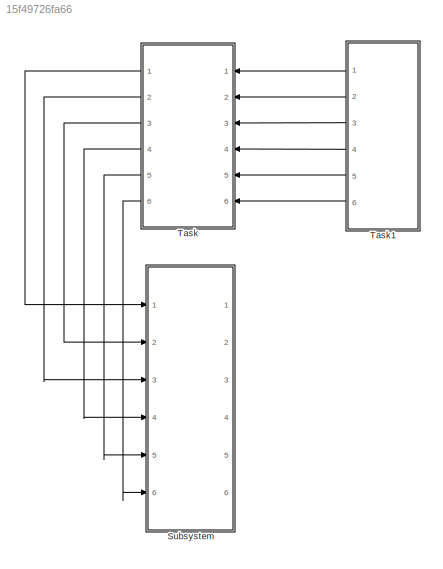
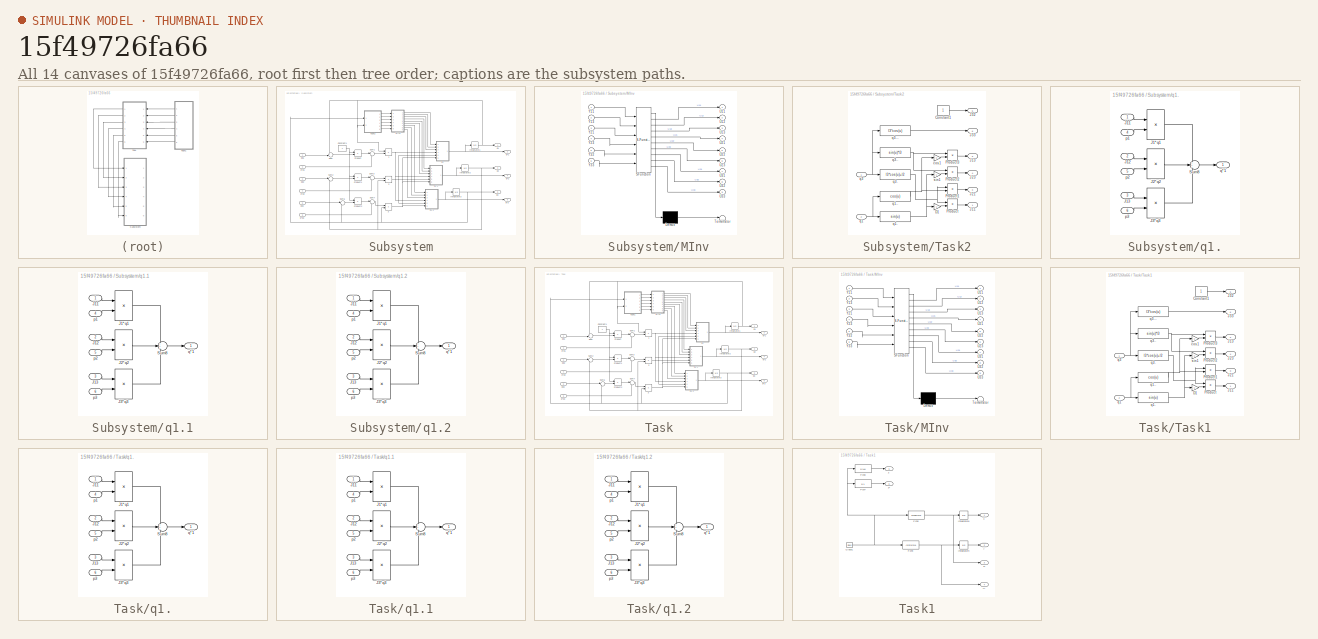
[diagram: thumbnail index - all 14 canvases of the model, root first then tree order]
MODEL slx_15f49726fa66
KIND model
CONFIG AbsTol = auto
CONFIG EnableMultiTasking = off
CONFIG FixedStep = auto
CONFIG MaxStep = auto
CONFIG MinStep = auto
CONFIG RelTol = 1e-3
CONFIG SampleTimeConstraint = Unconstrained
CONFIG Solver = VariableStepAuto
CONFIG SolverName = VariableStepAuto
CONFIG StartTime = 0.0
CONFIG StopTime = 10.0
BLOCK [SubSystem] Subsystem
  Ports = [6, 6]
  RequestExecContextInheritance = off
BLOCK [Product] Subsystem/1
  Ports = [2, 1]
BLOCK [Product] Subsystem/2
  Ports = [2, 1]
BLOCK [Product] Subsystem/3
  Ports = [2, 1]
BLOCK [Constant] Subsystem/Constant1
  Value = 7
BLOCK [Integrator] Subsystem/Integrator1
  Ports = [1, 1]
BLOCK [Integrator] Subsystem/Integrator2
  Ports = [1, 1]
BLOCK [Integrator] Subsystem/Integrator3
  InitialCondition = 0.1
  Ports = [1, 1]
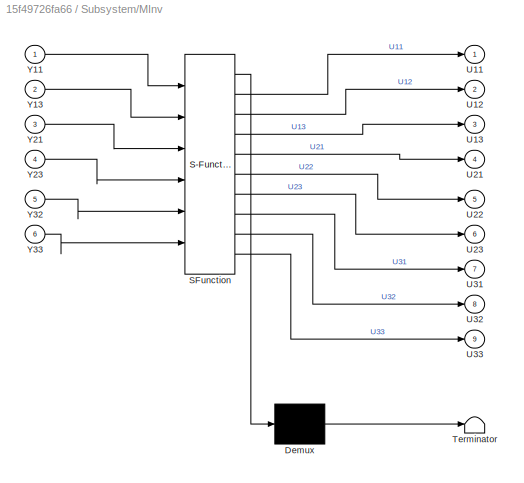
BLOCK [SubSystem] Subsystem/MInv
  ErrorFcn = Stateflow.Translate.translate
  PermitHierarchicalResolution = ExplicitOnly
  Ports = [6, 9]
  RequestExecContextInheritance = off
  SFBlockType = MATLAB Function
  TreatAsAtomicUnit = on
BLOCK [Demux] Subsystem/MInv/ Demux 
  Outputs = 1
  Ports = [1, 1]
BLOCK [S-Function] Subsystem/MInv/ SFunction 
  EnableBusSupport = on
  FunctionName = sf_sfun
  PortCounts = [6 10]
  Ports = [6, 10]
  SFcnIsStateOwnerBlock = off
  SFunctionDeploymentMode = off
  Tag = Stateflow S-Function 1
BLOCK [Terminator] Subsystem/MInv/ Terminator 
BLOCK [Outport] Subsystem/MInv/U11
BLOCK [Outport] Subsystem/MInv/U12
  Port = 2
BLOCK [Outport] Subsystem/MInv/U13
  Port = 3
BLOCK [Outport] Subsystem/MInv/U21
  Port = 4
BLOCK [Outport] Subsystem/MInv/U22
  Port = 5
BLOCK [Outport] Subsystem/MInv/U23
  Port = 6
BLOCK [Outport] Subsystem/MInv/U31
  Port = 7
BLOCK [Outport] Subsystem/MInv/U32
  Port = 8
BLOCK [Outport] Subsystem/MInv/U33
  Port = 9
BLOCK [Inport] Subsystem/MInv/Y11
BLOCK [Inport] Subsystem/MInv/Y13
  Port = 2
BLOCK [Inport] Subsystem/MInv/Y21
  Port = 3
BLOCK [Inport] Subsystem/MInv/Y23
  Port = 4
BLOCK [Inport] Subsystem/MInv/Y32
  Port = 5
BLOCK [Inport] Subsystem/MInv/Y33
  Port = 6
BLOCK [Product] Subsystem/Product
  Ports = [2, 1]
BLOCK [Product] Subsystem/Product1
  Ports = [2, 1]
BLOCK [Product] Subsystem/Product2
  Ports = [2, 1]
BLOCK [Sum] Subsystem/Sum
  Inputs = +-|
  Ports = [2, 1]
BLOCK [Sum] Subsystem/Sum1
  Inputs = |-+
  Ports = [2, 1]
BLOCK [Sum] Subsystem/Sum2
  Inputs = |-+
  Ports = [2, 1]
BLOCK [Sum] Subsystem/Sum3
  Inputs = |-+
  Ports = [2, 1]
BLOCK [Sum] Subsystem/Sum6
  Inputs = |-+
  Ports = [2, 1]
BLOCK [Sum] Subsystem/Sum7
  Inputs = |-+
  Ports = [2, 1]
BLOCK [SubSystem] Subsystem/Task2
  Ports = [2, 6]
  RequestExecContextInheritance = off
BLOCK [Constant] Subsystem/Task2/Constant1
BLOCK [Gain] Subsystem/Task2/D1
  Gain = -1
BLOCK [Outport] Subsystem/Task2/J11
BLOCK [Outport] Subsystem/Task2/J13
  Port = 2
BLOCK [Outport] Subsystem/Task2/J21
  Port = 3
BLOCK [Outport] Subsystem/Task2/J23
  Port = 4
BLOCK [Outport] Subsystem/Task2/J32
  Port = 5
BLOCK [Outport] Subsystem/Task2/J33
  Port = 6
BLOCK [Product] Subsystem/Task2/Product
  Ports = [2, 1]
BLOCK [Product] Subsystem/Task2/Product1
  Ports = [2, 1]
BLOCK [Product] Subsystem/Task2/Product2
  Ports = [2, 1]
BLOCK [Product] Subsystem/Task2/Product3
  Ports = [2, 1]
BLOCK [Gain] Subsystem/Task2/cos1
  Gain = -1
BLOCK [Inport] Subsystem/Task2/q1
  Port = 2
BLOCK [Fcn] Subsystem/Task2/q1.
  Expr = sin(u)
BLOCK [Fcn] Subsystem/Task2/q1..
  Expr = cos(u)
BLOCK [Inport] Subsystem/Task2/q3
BLOCK [Fcn] Subsystem/Task2/q3.
  Expr = l3*cos(u)+l2
BLOCK [Fcn] Subsystem/Task2/q3..
  Expr = sin(u)*l3
BLOCK [Fcn] Subsystem/Task2/q3...
  Expr = l3*cos(u)
BLOCK [Gain] Subsystem/Task2/sin1
  Gain = -1
BLOCK [Inport] Subsystem/p*d1
  Port = 3
BLOCK [Inport] Subsystem/p*d2
  Port = 4
BLOCK [Inport] Subsystem/p*d3
  Port = 6
BLOCK [Inport] Subsystem/pd1
BLOCK [Inport] Subsystem/pd2
  Port = 2
BLOCK [Inport] Subsystem/pd3
  Port = 5
BLOCK [Outport] Subsystem/q*1
  Port = 2
BLOCK [Outport] Subsystem/q*2
  Port = 4
BLOCK [Outport] Subsystem/q*3
  Port = 6
BLOCK [Outport] Subsystem/q1
BLOCK [SubSystem] Subsystem/q1.
  Ports = [6, 1]
  RequestExecContextInheritance = off
BLOCK [Product] Subsystem/q1./J1*q1
  Ports = [2, 1]
BLOCK [Inport] Subsystem/q1./J11
BLOCK [Inport] Subsystem/q1./J12
  Port = 2
BLOCK [Inport] Subsystem/q1./J13
  Port = 3
BLOCK [Product] Subsystem/q1./J2*q2
  Ports = [2, 1]
BLOCK [Product] Subsystem/q1./J3*q3
  Ports = [2, 1]
BLOCK [Sum] Subsystem/q1./Sum8
  Inputs = +++
  Ports = [3, 1]
BLOCK [Inport] Subsystem/q1./p1
  Port = 4
BLOCK [Inport] Subsystem/q1./p2
  Port = 5
BLOCK [Inport] Subsystem/q1./p3
  Port = 6
BLOCK [Outport] Subsystem/q1./q*1
BLOCK [SubSystem] Subsystem/q1.1
  Ports = [6, 1]
  RequestExecContextInheritance = off
BLOCK [Product] Subsystem/q1.1/J1*q1
  Ports = [2, 1]
BLOCK [Inport] Subsystem/q1.1/J11
BLOCK [Inport] Subsystem/q1.1/J12
  Port = 2
BLOCK [Inport] Subsystem/q1.1/J13
  Port = 3
BLOCK [Product] Subsystem/q1.1/J2*q2
  Ports = [2, 1]
BLOCK [Product] Subsystem/q1.1/J3*q3
  Ports = [2, 1]
BLOCK [Sum] Subsystem/q1.1/Sum8
  Inputs = +++
  Ports = [3, 1]
BLOCK [Inport] Subsystem/q1.1/p1
  Port = 4
BLOCK [Inport] Subsystem/q1.1/p2
  Port = 5
BLOCK [Inport] Subsystem/q1.1/p3
  Port = 6
BLOCK [Outport] Subsystem/q1.1/q*1
BLOCK [SubSystem] Subsystem/q1.2
  Ports = [6, 1]
  RequestExecContextInheritance = off
BLOCK [Product] Subsystem/q1.2/J1*q1
  Ports = [2, 1]
BLOCK [Inport] Subsystem/q1.2/J11
BLOCK [Inport] Subsystem/q1.2/J12
  Port = 2
BLOCK [Inport] Subsystem/q1.2/J13
  Port = 3
BLOCK [Product] Subsystem/q1.2/J2*q2
  Ports = [2, 1]
BLOCK [Product] Subsystem/q1.2/J3*q3
  Ports = [2, 1]
BLOCK [Sum] Subsystem/q1.2/Sum8
  Inputs = +++
  Ports = [3, 1]
BLOCK [Inport] Subsystem/q1.2/p1
  Port = 4
BLOCK [Inport] Subsystem/q1.2/p2
  Port = 5
BLOCK [Inport] Subsystem/q1.2/p3
  Port = 6
BLOCK [Outport] Subsystem/q1.2/q*1
BLOCK [Outport] Subsystem/q2
  Port = 3
BLOCK [Outport] Subsystem/q3
  Port = 5
BLOCK [SubSystem] Task
  Ports = [6, 6]
  RequestExecContextInheritance = off
BLOCK [Product] Task/1
  Ports = [2, 1]
BLOCK [Product] Task/2
  Ports = [2, 1]
BLOCK [Product] Task/3
  Ports = [2, 1]
BLOCK [Constant] Task/Constant1
  Value = 7
BLOCK [Integrator] Task/Integrator1
  Ports = [1, 1]
BLOCK [Integrator] Task/Integrator2
  Ports = [1, 1]
BLOCK [Integrator] Task/Integrator3
  InitialCondition = 0.1
  Ports = [1, 1]
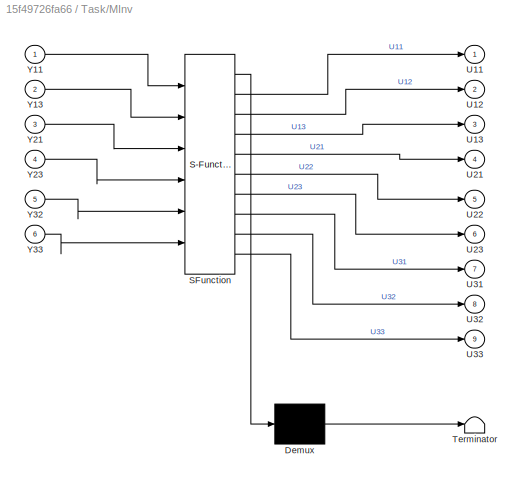
BLOCK [SubSystem] Task/MInv
  ErrorFcn = Stateflow.Translate.translate
  PermitHierarchicalResolution = ExplicitOnly
  Ports = [6, 9]
  RequestExecContextInheritance = off
  SFBlockType = MATLAB Function
  TreatAsAtomicUnit = on
BLOCK [Demux] Task/MInv/ Demux 
  Outputs = 1
  Ports = [1, 1]
BLOCK [S-Function] Task/MInv/ SFunction 
  EnableBusSupport = on
  FunctionName = sf_sfun
  PortCounts = [6 10]
  Ports = [6, 10]
  SFcnIsStateOwnerBlock = off
  SFunctionDeploymentMode = off
  Tag = Stateflow S-Function 10
BLOCK [Terminator] Task/MInv/ Terminator 
BLOCK [Outport] Task/MInv/U11
BLOCK [Outport] Task/MInv/U12
  Port = 2
BLOCK [Outport] Task/MInv/U13
  Port = 3
BLOCK [Outport] Task/MInv/U21
  Port = 4
BLOCK [Outport] Task/MInv/U22
  Port = 5
BLOCK [Outport] Task/MInv/U23
  Port = 6
BLOCK [Outport] Task/MInv/U31
  Port = 7
BLOCK [Outport] Task/MInv/U32
  Port = 8
BLOCK [Outport] Task/MInv/U33
  Port = 9
BLOCK [Inport] Task/MInv/Y11
BLOCK [Inport] Task/MInv/Y13
  Port = 2
BLOCK [Inport] Task/MInv/Y21
  Port = 3
BLOCK [Inport] Task/MInv/Y23
  Port = 4
BLOCK [Inport] Task/MInv/Y32
  Port = 5
BLOCK [Inport] Task/MInv/Y33
  Port = 6
BLOCK [Product] Task/Product
  Ports = [2, 1]
BLOCK [Product] Task/Product1
  Ports = [2, 1]
BLOCK [Product] Task/Product2
  Ports = [2, 1]
BLOCK [Sum] Task/Sum
  Inputs = +-|
  Ports = [2, 1]
BLOCK [Sum] Task/Sum1
  Inputs = |-+
  Ports = [2, 1]
BLOCK [Sum] Task/Sum2
  Inputs = |-+
  Ports = [2, 1]
BLOCK [Sum] Task/Sum3
  Inputs = |-+
  Ports = [2, 1]
BLOCK [Sum] Task/Sum6
  Inputs = |-+
  Ports = [2, 1]
BLOCK [Sum] Task/Sum7
  Inputs = |-+
  Ports = [2, 1]
BLOCK [SubSystem] Task/Task1
  Ports = [2, 6]
  RequestExecContextInheritance = off
BLOCK [Constant] Task/Task1/Constant1
BLOCK [Gain] Task/Task1/D1
  Gain = -1
BLOCK [Outport] Task/Task1/J11
BLOCK [Outport] Task/Task1/J13
  Port = 2
BLOCK [Outport] Task/Task1/J21
  Port = 3
BLOCK [Outport] Task/Task1/J23
  Port = 4
BLOCK [Outport] Task/Task1/J32
  Port = 5
BLOCK [Outport] Task/Task1/J33
  Port = 6
BLOCK [Product] Task/Task1/Product
  Ports = [2, 1]
BLOCK [Product] Task/Task1/Product1
  Ports = [2, 1]
BLOCK [Product] Task/Task1/Product2
  Ports = [2, 1]
BLOCK [Product] Task/Task1/Product3
  Ports = [2, 1]
BLOCK [Gain] Task/Task1/cos1
  Gain = -1
BLOCK [Inport] Task/Task1/q1
  Port = 2
BLOCK [Fcn] Task/Task1/q1.
  Expr = sin(u)
BLOCK [Fcn] Task/Task1/q1..
  Expr = cos(u)
BLOCK [Inport] Task/Task1/q3
BLOCK [Fcn] Task/Task1/q3.
  Expr = l3*cos(u)+l2
BLOCK [Fcn] Task/Task1/q3..
  Expr = sin(u)*l3
BLOCK [Fcn] Task/Task1/q3...
  Expr = l3*cos(u)
BLOCK [Gain] Task/Task1/sin1
  Gain = -1
BLOCK [Inport] Task/p*d1
  Port = 3
BLOCK [Inport] Task/p*d2
  Port = 4
BLOCK [Inport] Task/p*d3
  Port = 6
BLOCK [Inport] Task/pd1
BLOCK [Inport] Task/pd2
  Port = 2
BLOCK [Inport] Task/pd3
  Port = 5
BLOCK [Outport] Task/q*1
  Port = 2
BLOCK [Outport] Task/q*2
  Port = 4
BLOCK [Outport] Task/q*3
  Port = 6
BLOCK [Outport] Task/q1
BLOCK [SubSystem] Task/q1.
  Ports = [6, 1]
  RequestExecContextInheritance = off
BLOCK [Product] Task/q1./J1*q1
  Ports = [2, 1]
BLOCK [Inport] Task/q1./J11
BLOCK [Inport] Task/q1./J12
  Port = 2
BLOCK [Inport] Task/q1./J13
  Port = 3
BLOCK [Product] Task/q1./J2*q2
  Ports = [2, 1]
BLOCK [Product] Task/q1./J3*q3
  Ports = [2, 1]
BLOCK [Sum] Task/q1./Sum8
  Inputs = +++
  Ports = [3, 1]
BLOCK [Inport] Task/q1./p1
  Port = 4
BLOCK [Inport] Task/q1./p2
  Port = 5
BLOCK [Inport] Task/q1./p3
  Port = 6
BLOCK [Outport] Task/q1./q*1
BLOCK [SubSystem] Task/q1.1
  Ports = [6, 1]
  RequestExecContextInheritance = off
BLOCK [Product] Task/q1.1/J1*q1
  Ports = [2, 1]
BLOCK [Inport] Task/q1.1/J11
BLOCK [Inport] Task/q1.1/J12
  Port = 2
BLOCK [Inport] Task/q1.1/J13
  Port = 3
BLOCK [Product] Task/q1.1/J2*q2
  Ports = [2, 1]
BLOCK [Product] Task/q1.1/J3*q3
  Ports = [2, 1]
BLOCK [Sum] Task/q1.1/Sum8
  Inputs = +++
  Ports = [3, 1]
BLOCK [Inport] Task/q1.1/p1
  Port = 4
BLOCK [Inport] Task/q1.1/p2
  Port = 5
BLOCK [Inport] Task/q1.1/p3
  Port = 6
BLOCK [Outport] Task/q1.1/q*1
BLOCK [SubSystem] Task/q1.2
  Ports = [6, 1]
  RequestExecContextInheritance = off
BLOCK [Product] Task/q1.2/J1*q1
  Ports = [2, 1]
BLOCK [Inport] Task/q1.2/J11
BLOCK [Inport] Task/q1.2/J12
  Port = 2
BLOCK [Inport] Task/q1.2/J13
  Port = 3
BLOCK [Product] Task/q1.2/J2*q2
  Ports = [2, 1]
BLOCK [Product] Task/q1.2/J3*q3
  Ports = [2, 1]
BLOCK [Sum] Task/q1.2/Sum8
  Inputs = +++
  Ports = [3, 1]
BLOCK [Inport] Task/q1.2/p1
  Port = 4
BLOCK [Inport] Task/q1.2/p2
  Port = 5
BLOCK [Inport] Task/q1.2/p3
  Port = 6
BLOCK [Outport] Task/q1.2/q*1
BLOCK [Outport] Task/q2
  Port = 3
BLOCK [Outport] Task/q3
  Port = 5
BLOCK [SubSystem] Task1
  Ports = [0, 6]
  RequestExecContextInheritance = off
BLOCK [Clock] Task1/Clock1
BLOCK [Fcn] Task1/Fcn6
  Expr = 2*cos(2*u)
BLOCK [Fcn] Task1/Fcn7
  Expr = 0.1
BLOCK [Fcn] Task1/Fcn8
  Expr = 0.1+u
BLOCK [Fcn] Task1/Fcn9
  Expr = -2*sin(2*u)
BLOCK [Integrator] Task1/Integrator8
  Ports = [1, 1]
BLOCK [Integrator] Task1/Integrator9
  InitialCondition = 1
  Ports = [1, 1]
BLOCK [Outport] Task1/x
BLOCK [Outport] Task1/x*
  Port = 3
BLOCK [Outport] Task1/y
  Port = 2
BLOCK [Outport] Task1/y*'
  Port = 4
BLOCK [Outport] Task1/z
  Port = 5
BLOCK [Outport] Task1/z*
  Port = 6
NET Subsystem/1:1 -> Subsystem/q1.1:4, Subsystem/q1.2:4, Subsystem/q1.:4
NET Subsystem/2:1 -> Subsystem/q1.1:5, Subsystem/q1.2:5, Subsystem/q1.:5
NET Subsystem/3:1 -> Subsystem/q1.1:6, Subsystem/q1.2:6, Subsystem/q1.:6
NET Subsystem/Constant1:1 -> Subsystem/Product1:1, Subsystem/Product2:1, Subsystem/Product:1
NET Subsystem/Integrator1:1 -> Subsystem/1:1, Subsystem/Sum:1, Subsystem/Task2:2, Subsystem/q1:1
NET Subsystem/Integrator2:1 -> Subsystem/2:2, Subsystem/Sum2:2, Subsystem/q2:1
NET Subsystem/Integrator3:1 -> Subsystem/3:2, Subsystem/Sum6:2, Subsystem/Task2:1, Subsystem/q3:1
LINE Subsystem/MInv:1 -> Subsystem/q1.:1
LINE Subsystem/MInv:2 -> Subsystem/q1.:2
LINE Subsystem/MInv:3 -> Subsystem/q1.:3
LINE Subsystem/MInv:4 -> Subsystem/q1.1:1
LINE Subsystem/MInv:5 -> Subsystem/q1.1:2
LINE Subsystem/MInv:6 -> Subsystem/q1.1:3
LINE Subsystem/MInv:7 -> Subsystem/q1.2:1
LINE Subsystem/MInv:8 -> Subsystem/q1.2:2
LINE Subsystem/MInv:9 -> Subsystem/q1.2:3
LINE Subsystem/Product1:1 -> Subsystem/Sum3:1
LINE Subsystem/Product2:1 -> Subsystem/Sum7:1
LINE Subsystem/Product:1 -> Subsystem/Sum1:1
LINE Subsystem/Sum1:1 -> Subsystem/1:2
LINE Subsystem/Sum2:1 -> Subsystem/Product1:2
LINE Subsystem/Sum3:1 -> Subsystem/2:1
LINE Subsystem/Sum6:1 -> Subsystem/Product2:2
LINE Subsystem/Sum7:1 -> Subsystem/3:1
LINE Subsystem/Sum:1 -> Subsystem/Product:2
LINE Subsystem/Task2/Constant1:1 -> Subsystem/Task2/J32:1
LINE Subsystem/Task2/D1:1 -> Subsystem/Task2/Product:2
LINE Subsystem/Task2/Product1:1 -> Subsystem/Task2/J21:1
LINE Subsystem/Task2/Product2:1 -> Subsystem/Task2/J23:1
LINE Subsystem/Task2/Product3:1 -> Subsystem/Task2/J13:1
LINE Subsystem/Task2/Product:1 -> Subsystem/Task2/J11:1
LINE Subsystem/Task2/cos1:1 -> Subsystem/Task2/Product3:2
NET Subsystem/Task2/q1..:1 -> Subsystem/Task2/Product1:2, Subsystem/Task2/cos1:1
NET Subsystem/Task2/q1.:1 -> Subsystem/Task2/D1:1, Subsystem/Task2/sin1:1
NET Subsystem/Task2/q1:1 -> Subsystem/Task2/q1..:1, Subsystem/Task2/q1.:1
LINE Subsystem/Task2/q3...:1 -> Subsystem/Task2/J33:1
NET Subsystem/Task2/q3..:1 -> Subsystem/Task2/Product2:1, Subsystem/Task2/Product3:1
NET Subsystem/Task2/q3.:1 -> Subsystem/Task2/Product1:1, Subsystem/Task2/Product:1
NET Subsystem/Task2/q3:1 -> Subsystem/Task2/q3...:1, Subsystem/Task2/q3..:1, Subsystem/Task2/q3.:1
LINE Subsystem/Task2/sin1:1 -> Subsystem/Task2/Product2:2
LINE Subsystem/Task2:1 -> Subsystem/MInv:1
LINE Subsystem/Task2:2 -> Subsystem/MInv:2
LINE Subsystem/Task2:3 -> Subsystem/MInv:3
LINE Subsystem/Task2:4 -> Subsystem/MInv:4
LINE Subsystem/Task2:5 -> Subsystem/MInv:5
LINE Subsystem/Task2:6 -> Subsystem/MInv:6
LINE Subsystem/p*d1:1 -> Subsystem/Sum1:2
LINE Subsystem/p*d2:1 -> Subsystem/Sum3:2
LINE Subsystem/p*d3:1 -> Subsystem/Sum7:2
LINE Subsystem/pd1:1 -> Subsystem/Sum:2
LINE Subsystem/pd2:1 -> Subsystem/Sum2:1
LINE Subsystem/pd3:1 -> Subsystem/Sum6:1
LINE Subsystem/q1./J1*q1:1 -> Subsystem/q1./Sum8:1
LINE Subsystem/q1./J11:1 -> Subsystem/q1./J1*q1:1
LINE Subsystem/q1./J12:1 -> Subsystem/q1./J2*q2:1
LINE Subsystem/q1./J13:1 -> Subsystem/q1./J3*q3:1
LINE Subsystem/q1./J2*q2:1 -> Subsystem/q1./Sum8:2
LINE Subsystem/q1./J3*q3:1 -> Subsystem/q1./Sum8:3
LINE Subsystem/q1./Sum8:1 -> Subsystem/q1./q*1:1
LINE Subsystem/q1./p1:1 -> Subsystem/q1./J1*q1:2
LINE Subsystem/q1./p2:1 -> Subsystem/q1./J2*q2:2
LINE Subsystem/q1./p3:1 -> Subsystem/q1./J3*q3:2
LINE Subsystem/q1.1/J1*q1:1 -> Subsystem/q1.1/Sum8:1
LINE Subsystem/q1.1/J11:1 -> Subsystem/q1.1/J1*q1:1
LINE Subsystem/q1.1/J12:1 -> Subsystem/q1.1/J2*q2:1
LINE Subsystem/q1.1/J13:1 -> Subsystem/q1.1/J3*q3:1
LINE Subsystem/q1.1/J2*q2:1 -> Subsystem/q1.1/Sum8:2
LINE Subsystem/q1.1/J3*q3:1 -> Subsystem/q1.1/Sum8:3
LINE Subsystem/q1.1/Sum8:1 -> Subsystem/q1.1/q*1:1
LINE Subsystem/q1.1/p1:1 -> Subsystem/q1.1/J1*q1:2
LINE Subsystem/q1.1/p2:1 -> Subsystem/q1.1/J2*q2:2
LINE Subsystem/q1.1/p3:1 -> Subsystem/q1.1/J3*q3:2
NET Subsystem/q1.1:1 -> Subsystem/Integrator2:1, Subsystem/q*2:1
LINE Subsystem/q1.2/J1*q1:1 -> Subsystem/q1.2/Sum8:1
LINE Subsystem/q1.2/J11:1 -> Subsystem/q1.2/J1*q1:1
LINE Subsystem/q1.2/J12:1 -> Subsystem/q1.2/J2*q2:1
LINE Subsystem/q1.2/J13:1 -> Subsystem/q1.2/J3*q3:1
LINE Subsystem/q1.2/J2*q2:1 -> Subsystem/q1.2/Sum8:2
LINE Subsystem/q1.2/J3*q3:1 -> Subsystem/q1.2/Sum8:3
LINE Subsystem/q1.2/Sum8:1 -> Subsystem/q1.2/q*1:1
LINE Subsystem/q1.2/p1:1 -> Subsystem/q1.2/J1*q1:2
LINE Subsystem/q1.2/p2:1 -> Subsystem/q1.2/J2*q2:2
LINE Subsystem/q1.2/p3:1 -> Subsystem/q1.2/J3*q3:2
NET Subsystem/q1.2:1 -> Subsystem/Integrator3:1, Subsystem/q*3:1
NET Subsystem/q1.:1 -> Subsystem/Integrator1:1, Subsystem/q*1:1
NET Task/1:1 -> Task/q1.1:4, Task/q1.2:4, Task/q1.:4
NET Task/2:1 -> Task/q1.1:5, Task/q1.2:5, Task/q1.:5
NET Task/3:1 -> Task/q1.1:6, Task/q1.2:6, Task/q1.:6
NET Task/Constant1:1 -> Task/Product1:1, Task/Product2:1, Task/Product:1
NET Task/Integrator1:1 -> Task/1:1, Task/Sum:1, Task/Task1:2, Task/q1:1
NET Task/Integrator2:1 -> Task/2:2, Task/Sum2:2, Task/q2:1
NET Task/Integrator3:1 -> Task/3:2, Task/Sum6:2, Task/Task1:1, Task/q3:1
LINE Task/MInv:1 -> Task/q1.:1
LINE Task/MInv:2 -> Task/q1.:2
LINE Task/MInv:3 -> Task/q1.:3
LINE Task/MInv:4 -> Task/q1.1:1
LINE Task/MInv:5 -> Task/q1.1:2
LINE Task/MInv:6 -> Task/q1.1:3
LINE Task/MInv:7 -> Task/q1.2:1
LINE Task/MInv:8 -> Task/q1.2:2
LINE Task/MInv:9 -> Task/q1.2:3
LINE Task/Product1:1 -> Task/Sum3:1
LINE Task/Product2:1 -> Task/Sum7:1
LINE Task/Product:1 -> Task/Sum1:1
LINE Task/Sum1:1 -> Task/1:2
LINE Task/Sum2:1 -> Task/Product1:2
LINE Task/Sum3:1 -> Task/2:1
LINE Task/Sum6:1 -> Task/Product2:2
LINE Task/Sum7:1 -> Task/3:1
LINE Task/Sum:1 -> Task/Product:2
LINE Task/Task1/Constant1:1 -> Task/Task1/J32:1
LINE Task/Task1/D1:1 -> Task/Task1/Product:2
LINE Task/Task1/Product1:1 -> Task/Task1/J21:1
LINE Task/Task1/Product2:1 -> Task/Task1/J23:1
LINE Task/Task1/Product3:1 -> Task/Task1/J13:1
LINE Task/Task1/Product:1 -> Task/Task1/J11:1
LINE Task/Task1/cos1:1 -> Task/Task1/Product3:2
NET Task/Task1/q1..:1 -> Task/Task1/Product1:2, Task/Task1/cos1:1
NET Task/Task1/q1.:1 -> Task/Task1/D1:1, Task/Task1/sin1:1
NET Task/Task1/q1:1 -> Task/Task1/q1..:1, Task/Task1/q1.:1
LINE Task/Task1/q3...:1 -> Task/Task1/J33:1
NET Task/Task1/q3..:1 -> Task/Task1/Product2:1, Task/Task1/Product3:1
NET Task/Task1/q3.:1 -> Task/Task1/Product1:1, Task/Task1/Product:1
NET Task/Task1/q3:1 -> Task/Task1/q3...:1, Task/Task1/q3..:1, Task/Task1/q3.:1
LINE Task/Task1/sin1:1 -> Task/Task1/Product2:2
LINE Task/Task1:1 -> Task/MInv:1
LINE Task/Task1:2 -> Task/MInv:2
LINE Task/Task1:3 -> Task/MInv:3
LINE Task/Task1:4 -> Task/MInv:4
LINE Task/Task1:5 -> Task/MInv:5
LINE Task/Task1:6 -> Task/MInv:6
LINE Task/p*d1:1 -> Task/Sum1:2
LINE Task/p*d2:1 -> Task/Sum3:2
LINE Task/p*d3:1 -> Task/Sum7:2
LINE Task/pd1:1 -> Task/Sum:2
LINE Task/pd2:1 -> Task/Sum2:1
LINE Task/pd3:1 -> Task/Sum6:1
LINE Task/q1./J1*q1:1 -> Task/q1./Sum8:1
LINE Task/q1./J11:1 -> Task/q1./J1*q1:1
LINE Task/q1./J12:1 -> Task/q1./J2*q2:1
LINE Task/q1./J13:1 -> Task/q1./J3*q3:1
LINE Task/q1./J2*q2:1 -> Task/q1./Sum8:2
LINE Task/q1./J3*q3:1 -> Task/q1./Sum8:3
LINE Task/q1./Sum8:1 -> Task/q1./q*1:1
LINE Task/q1./p1:1 -> Task/q1./J1*q1:2
LINE Task/q1./p2:1 -> Task/q1./J2*q2:2
LINE Task/q1./p3:1 -> Task/q1./J3*q3:2
LINE Task/q1.1/J1*q1:1 -> Task/q1.1/Sum8:1
LINE Task/q1.1/J11:1 -> Task/q1.1/J1*q1:1
LINE Task/q1.1/J12:1 -> Task/q1.1/J2*q2:1
LINE Task/q1.1/J13:1 -> Task/q1.1/J3*q3:1
LINE Task/q1.1/J2*q2:1 -> Task/q1.1/Sum8:2
LINE Task/q1.1/J3*q3:1 -> Task/q1.1/Sum8:3
LINE Task/q1.1/Sum8:1 -> Task/q1.1/q*1:1
LINE Task/q1.1/p1:1 -> Task/q1.1/J1*q1:2
LINE Task/q1.1/p2:1 -> Task/q1.1/J2*q2:2
LINE Task/q1.1/p3:1 -> Task/q1.1/J3*q3:2
NET Task/q1.1:1 -> Task/Integrator2:1, Task/q*2:1
LINE Task/q1.2/J1*q1:1 -> Task/q1.2/Sum8:1
LINE Task/q1.2/J11:1 -> Task/q1.2/J1*q1:1
LINE Task/q1.2/J12:1 -> Task/q1.2/J2*q2:1
LINE Task/q1.2/J13:1 -> Task/q1.2/J3*q3:1
LINE Task/q1.2/J2*q2:1 -> Task/q1.2/Sum8:2
LINE Task/q1.2/J3*q3:1 -> Task/q1.2/Sum8:3
LINE Task/q1.2/Sum8:1 -> Task/q1.2/q*1:1
LINE Task/q1.2/p1:1 -> Task/q1.2/J1*q1:2
LINE Task/q1.2/p2:1 -> Task/q1.2/J2*q2:2
LINE Task/q1.2/p3:1 -> Task/q1.2/J3*q3:2
NET Task/q1.2:1 -> Task/Integrator3:1, Task/q*3:1
NET Task/q1.:1 -> Task/Integrator1:1, Task/q*1:1
NET Task1/Clock1:1 -> Task1/Fcn6:1, Task1/Fcn7:1, Task1/Fcn8:1, Task1/Fcn9:1
NET Task1/Fcn6:1 -> Task1/Integrator8:1, Task1/x*:1
LINE Task1/Fcn7:1 -> Task1/z*:1
LINE Task1/Fcn8:1 -> Task1/z:1
NET Task1/Fcn9:1 -> Task1/Integrator9:1, Task1/y*':1
LINE Task1/Integrator8:1 -> Task1/x:1
LINE Task1/Integrator9:1 -> Task1/y:1
LINE Task1:1 -> Task:1
LINE Task1:2 -> Task:2
LINE Task1:3 -> Task:3
LINE Task1:4 -> Task:4
LINE Task1:5 -> Task:5
LINE Task1:6 -> Task:6
LINE Task:1 -> Subsystem:1
LINE Task:2 -> Subsystem:3
LINE Task:3 -> Subsystem:2
LINE Task:4 -> Subsystem:4
LINE Task:5 -> Subsystem:5
LINE Task:6 -> Subsystem:6
note: NET lines group one-source signal fan-out (src -> all destinations, sorted); 1:1 wires keep LINE
CHART Subsystem/MInv states=1 transitions=1
  STATE_LABEL 'eML_blk_kernel()'
  STATE_LABEL 'SCRIPT:\nfunction [U11, U12, U13, U21, U22, U23, U31, U32, U33] = c(Y11, Y13, Y21, Y23, Y32, Y33)\n\nM = [Y11 0 Y13; Y21 0 Y23; 0 Y32 Y33];\nF = inv(M);\n\nU11 = F(1);\nU12 = F(2);\nU13 = F(3);\nU21 = F(4);\nU22 = F(5);\nU23 = F(6);\nU31 = F(7);\nU32 = F(9);\nU33 = F(9);\n\n\n\n'
CHART Task/MInv states=1 transitions=1
  STATE_LABEL 'eML_blk_kernel()'
  STATE_LABEL 'SCRIPT:\nfunction [U11, U12, U13, U21, U22, U23, U31, U32, U33] = c(Y11, Y13, Y21, Y23, Y32, Y33)\n\nM = [Y11 0 Y13; Y21 0 Y23; 0 Y32 Y33];\nF = inv(M);\n\nU11 = F(1);\nU12 = F(2);\nU13 = F(3);\nU21 = F(4);\nU22 = F(5);\nU23 = F(6);\nU31 = F(7);\nU32 = F(9);\nU33 = F(9);\n\n\n\n'
CHART  states=0 transitions=0
CHART  states=0 transitions=0
